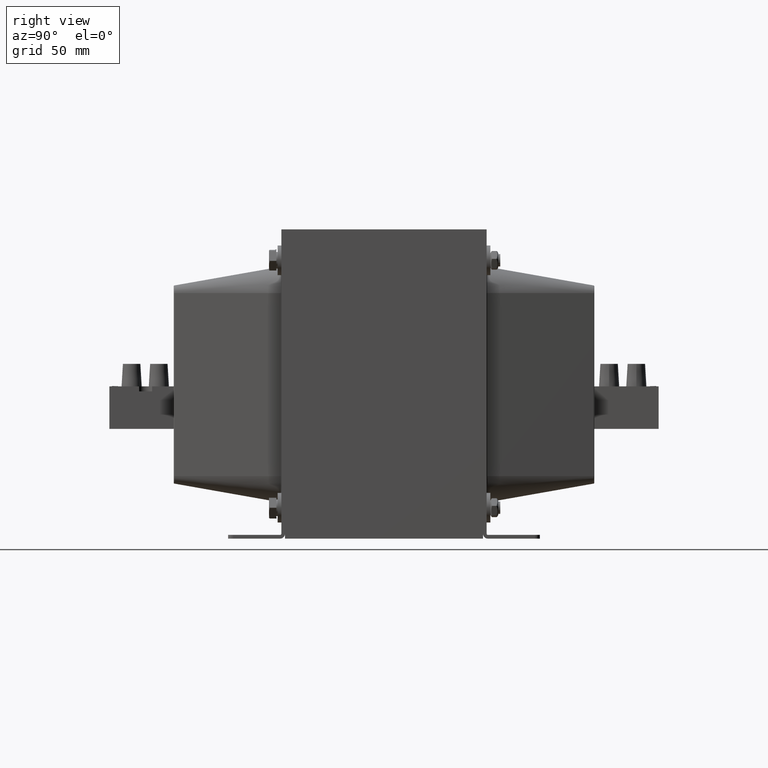
[diagram: clean part render]
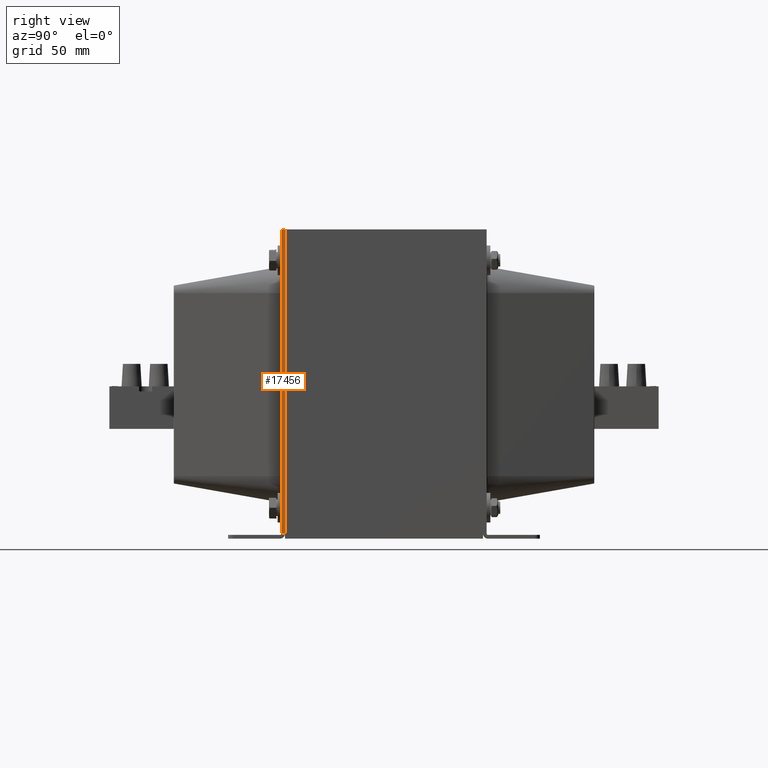
[diagram: same view with one face highlighted and labeled with its STEP entity id]
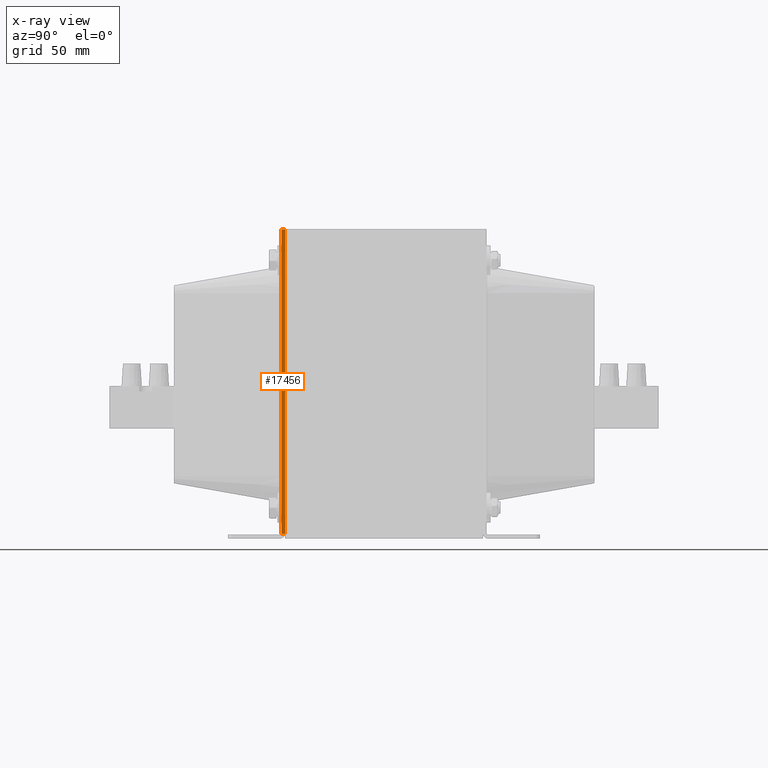
[diagram: x-ray of the same camera — body ghosted, the highlighted face saturated]
A machine part, right view. The second image highlights one B-rep face of the part: STEP entity #17456.
The next image is the same camera in x-ray: the body ghosted, the highlighted face saturated — about 0% of this face is hidden behind the body in this view.
In plain terms, the highlighted planar face has unit normal (1, -0, -0).
Its self-contained STEP definition (entity closure, byte-faithful):
#1590=PLANE('',#19174);
#3299=LINE('',#39699,#5105);
#3358=LINE('',#39917,#5164);
#3362=LINE('',#39926,#5168);
#3364=LINE('',#39929,#5170);
#5105=VECTOR('',#23052,10.);
#5164=VECTOR('',#23295,10.);
#5168=VECTOR('',#23307,10.);
#5170=VECTOR('',#23311,10.);
#6253=FACE_OUTER_BOUND('',#7342,.T.);
#7342=EDGE_LOOP('',(#16324,#16325,#16326,#16327));
#9177=VERTEX_POINT('',#39688);
#9179=VERTEX_POINT('',#39698);
#9246=VERTEX_POINT('',#39916);
#9247=VERTEX_POINT('',#39925);
#11507=EDGE_CURVE('',#9179,#9177,#3299,.T.);
#11615=EDGE_CURVE('',#9246,#9179,#3358,.T.);
#11619=EDGE_CURVE('',#9247,#9246,#3362,.T.);
#11621=EDGE_CURVE('',#9177,#9247,#3364,.T.);
#16324=ORIENTED_EDGE('',*,*,#11507,.T.);
#16325=ORIENTED_EDGE('',*,*,#11621,.T.);
#16326=ORIENTED_EDGE('',*,*,#11619,.T.);
#16327=ORIENTED_EDGE('',*,*,#11615,.T.);
#17456=ADVANCED_FACE('',(#6253),#1590,.T.);
#19174=AXIS2_PLACEMENT_3D('',#39928,#23309,#23310);
#23052=DIRECTION('',(0.,-1.,0.));
#23295=DIRECTION('',(1.,0.,0.));
#23307=DIRECTION('',(0.,1.,0.));
#23309=DIRECTION('center_axis',(0.,0.,-1.));
#23310=DIRECTION('ref_axis',(-1.,0.,0.));
#23311=DIRECTION('',(-1.,0.,0.));
#39688=CARTESIAN_POINT('',(-2.,0.,0.));
#39698=CARTESIAN_POINT('',(-2.,1.5,0.));
#39699=CARTESIAN_POINT('',(-1.99999999999999,0.75,0.));
#39916=CARTESIAN_POINT('',(-125.,1.5,0.));
#39917=CARTESIAN_POINT('',(0.,1.5,0.));
#39925=CARTESIAN_POINT('',(-125.,0.,0.));
#39926=CARTESIAN_POINT('',(-125.,0.,0.));
#39928=CARTESIAN_POINT('Origin',(-125.,0.,0.));
#39929=CARTESIAN_POINT('',(0.,0.,0.));